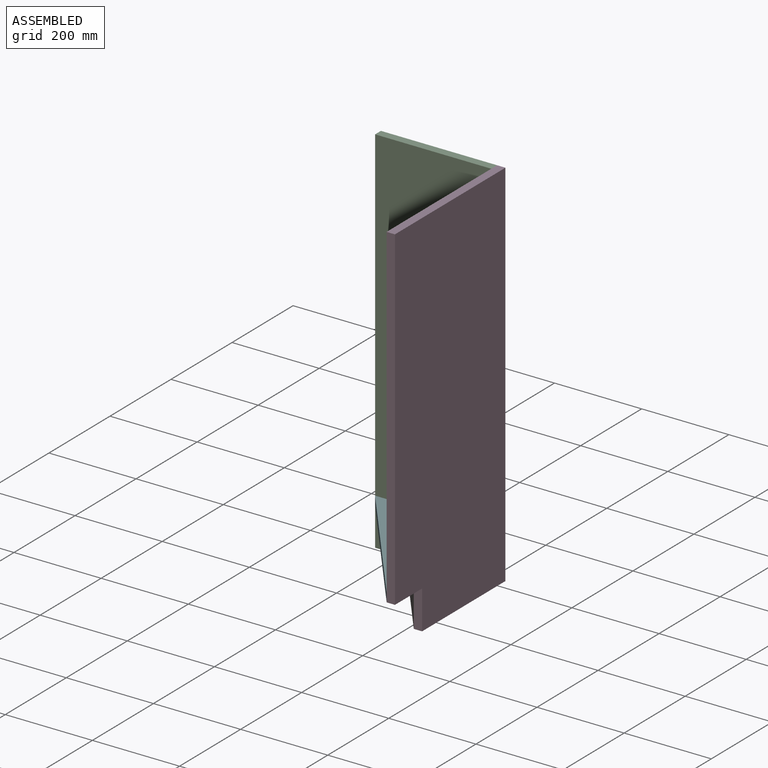
[diagram: assembled view]
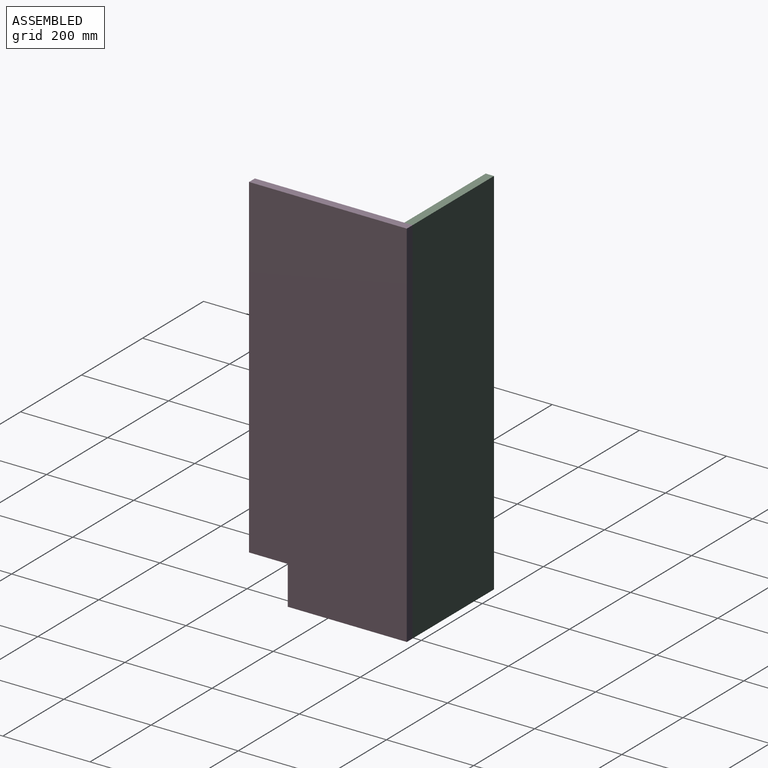
[diagram: assembled view, second angle]
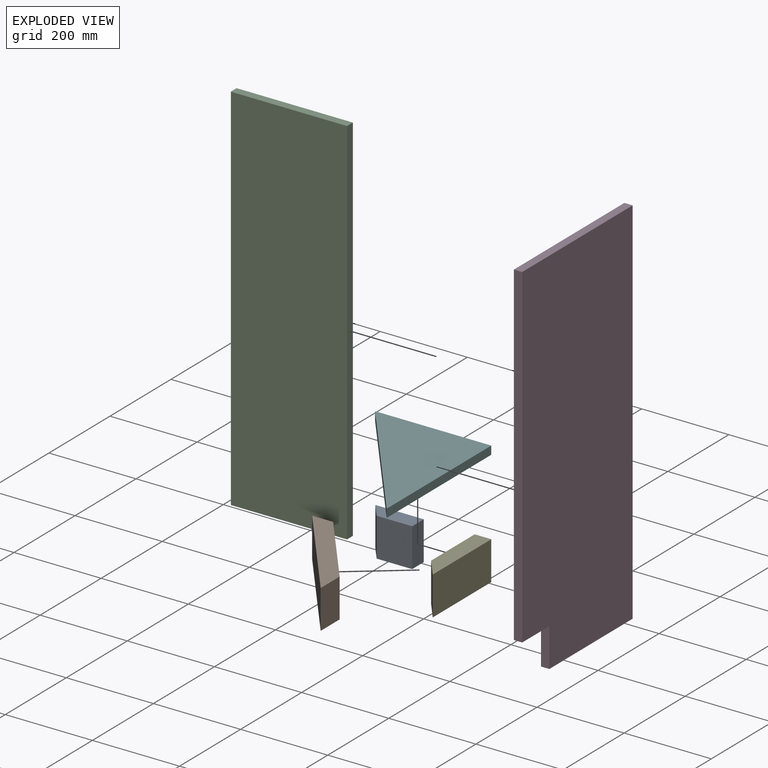
[diagram: exploded view]
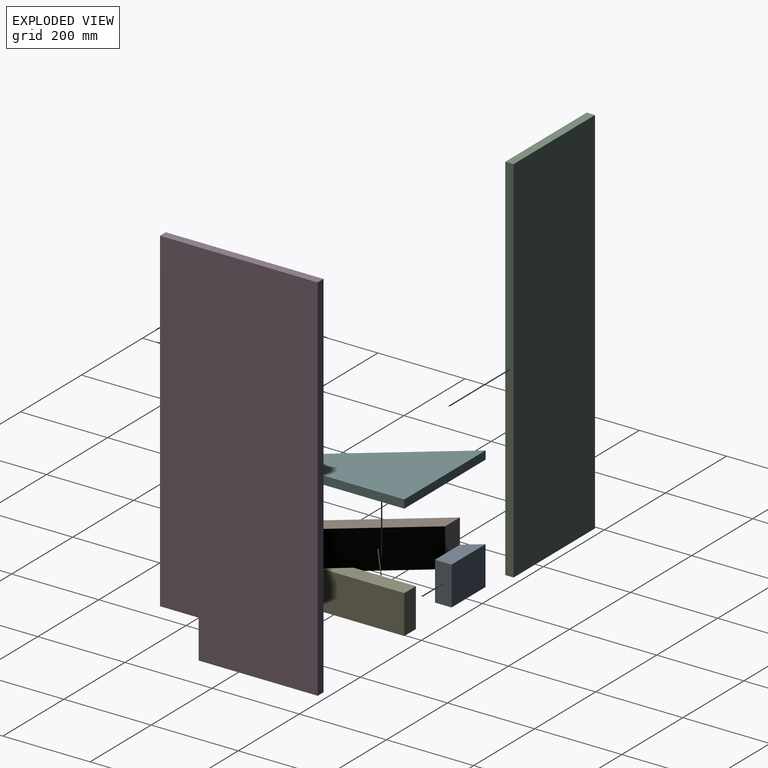
[diagram: exploded view, second angle]
ASSEMBLY  parts=6 mates=5
PART A: 6 faces, bbox 111.2x38.1x88.9 mm
  f0: plane 111.19x38.1mm, normal (0,0,1), area 3671.8mm2, adj f1,f3,f4,f5
  f1: plane 88.9x38.1mm, normal (1,0,0), area 3387.1mm2, adj f0,f2,f3,f4
  f2: plane 111.19x38.1mm, normal (0,0,-1), area 3671.8mm2, adj f1,f3,f4,f5
  f3: plane 111.19x88.9mm, normal (0,1,0), area 9884.6mm2, adj f0,f1,f2,f5
  f4: plane 88.9x81.55mm, normal (0,-1,0), area 7250.2mm2, adj f0,f1,f2,f5
  f5: plane 88.9x38.1mm, normal (-0.79,-0.61,0), area 4291mm2, adj f0,f2,f3,f4
PART B: 6 faces, bbox 197.6x254x88.9 mm
  f0: plane 254x197.56mm, normal (0,0,1), area 10762.2mm2, adj f1,f3,f4,f5
  f1: plane 191.94x149.29mm, normal (0.79,0.61,0), area 21617.3mm2, adj f0,f2,f3,f4
  f2: plane 254x197.56mm, normal (0,0,-1), area 10762.2mm2, adj f1,f3,f4,f5
  f3: plane 88.9x48.27mm, normal (0,1,0), area 4291mm2, adj f0,f1,f2,f5
  f4: plane 88.9x62.06mm, normal (1,0,0), area 5517mm2, adj f0,f1,f2,f5
  f5: plane 254x197.56mm, normal (-0.79,-0.61,0), area 28606.5mm2, adj f0,f2,f3,f4
PART C: 6 faces, bbox 266.7x19.1x857.3 mm
  f0: plane 266.7x19.05mm, normal (0,0,1), area 5080.6mm2, adj f1,f3,f4,f5
  f1: plane 857.25x266.7mm, normal (0,1,0), area 228628.6mm2, adj f0,f2,f3,f4
  f2: plane 266.7x19.05mm, normal (0,0,-1), area 5080.6mm2, adj f1,f3,f4,f5
  f3: plane 857.25x19.05mm, normal (-1,0,0), area 16330.6mm2, adj f0,f1,f2,f5
  f4: plane 857.25x19.05mm, normal (1,0,0), area 16330.6mm2, adj f0,f1,f2,f5
  f5: plane 857.25x266.7mm, normal (0,-1,0), area 228628.6mm2, adj f0,f2,f3,f4
PART D: 8 faces, bbox 19.1x362x857.3 mm
  f0: plane 273.05x19.05mm, normal (0,0,-1), area 5201.6mm2, adj f1,f2,f5,f6
  f1: plane 857.25x361.95mm, normal (1,0,0), area 302378.4mm2, adj f0,f3,f4,f5,f6,f7
  f2: plane 857.25x361.95mm, normal (-1,0,0), area 302378.4mm2, adj f0,f3,f4,f5,f6,f7
  f3: plane 361.95x19.05mm, normal (0,0,1), area 6895.1mm2, adj f1,f2,f4,f5
  f4: plane 768.35x19.05mm, normal (0,-1,0), area 14637.1mm2, adj f1,f2,f3,f7
  f5: plane 857.25x19.05mm, normal (0,1,0), area 16330.6mm2, adj f0,f1,f2,f3
  f6: plane 88.9x19.05mm, normal (0,-1,0), area 1693.5mm2, adj f0,f1,f2,f7
  f7: plane 88.9x19.05mm, normal (0,0,-1), area 1693.5mm2, adj f1,f2,f4,f6
PART E: 6 faces, bbox 38.1x191.9x88.9 mm
  f0: plane 191.94x38.1mm, normal (0,0,1), area 6379.8mm2, adj f1,f3,f4,f5
  f1: plane 88.9x48.99mm, normal (-0.79,-0.61,0), area 5517mm2, adj f0,f2,f3,f4
  f2: plane 191.94x38.1mm, normal (0,0,-1), area 6379.8mm2, adj f1,f3,f4,f5
  f3: plane 191.94x88.9mm, normal (1,0,0), area 17063.6mm2, adj f0,f1,f2,f5
  f4: plane 142.96x88.9mm, normal (-1,0,0), area 12708.8mm2, adj f0,f1,f2,f5
  f5: plane 88.9x38.1mm, normal (0,1,0), area 3387.1mm2, adj f0,f2,f3,f4
PART F: 5 faces, bbox 266.7x342.9x19.1 mm
  f0: plane 342.9x266.7mm, normal (0,0,-1), area 45725.7mm2, adj f1,f2,f3
  f1: plane 342.9x19.05mm, normal (1,0,0), area 6532.2mm2, adj f0,f2,f3,f4
  f2: plane 266.7x19.05mm, normal (0,1,0), area 5080.6mm2, adj f0,f1,f3,f4
  f3: plane 342.9x266.7mm, normal (-0.79,-0.61,0), area 8275.5mm2, adj f0,f1,f2,f4
  f4: plane 342.9x266.7mm, normal (0,0,1), area 45725.7mm2, adj f1,f2,f3
PLACE A at identity fixed
PLACE B at identity
PLACE C at identity
PLACE D at identity
PLACE E at identity
PLACE F t=(0,0,107.95)mm
MATE fastened E.f0 <-> F.f0  axis (0,0,1) through (-571.5,-19.05,88.9)mm
MATE fastened C.f5 <-> E.f5  axis (0,-1,0) through (-571.5,-19.05,0)mm
MATE fastened A.f1 <-> E.f4  axis (1,0,0) through (-609.6,-19.05,0)mm
MATE fastened B.f1 <-> A.f5  axis (0.79,0.61,0) through (-720.79,-19.05,0)mm
MATE fastened C.f4 <-> D.f2  axis (1,0,0) through (-571.5,0,0)mm
